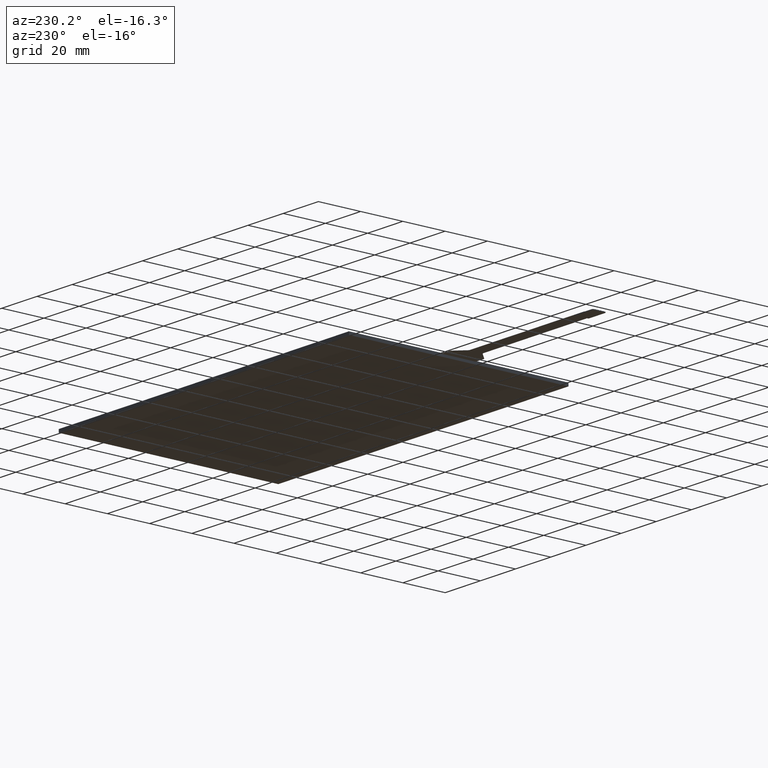
[diagram: clean part render]
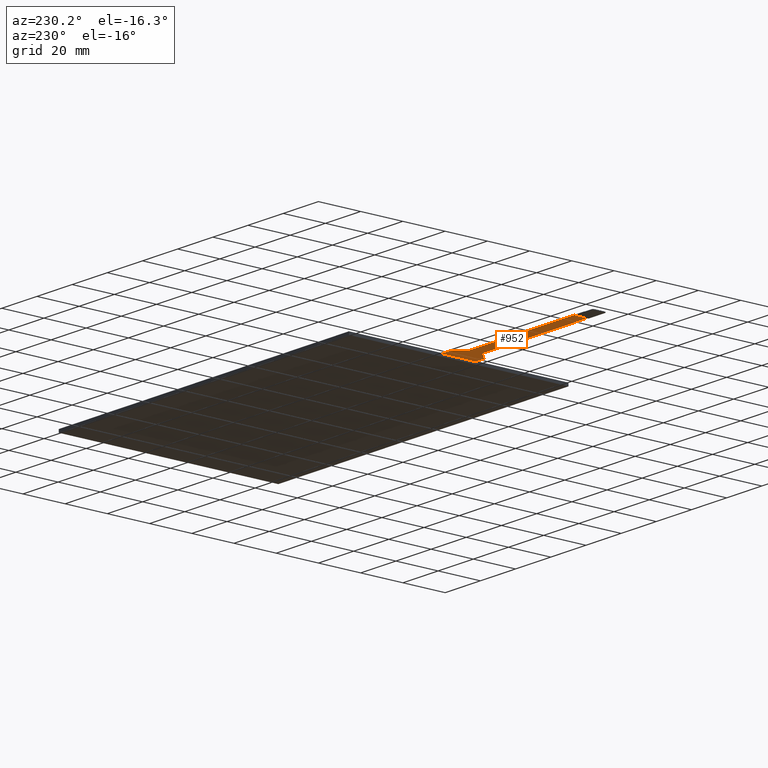
[diagram: same view with one face highlighted and labeled with its STEP entity id]
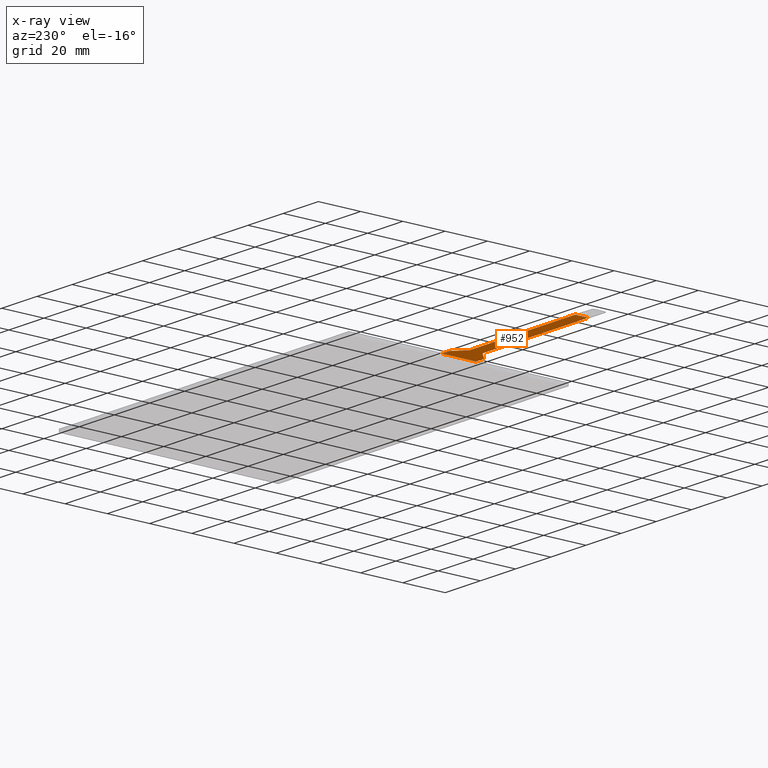
[diagram: x-ray of the same camera — body ghosted, the highlighted face saturated]
A machine part, auxiliary view. The second image highlights one B-rep face of the part: STEP entity #952.
The next image is the same camera in x-ray: the body ghosted, the highlighted face saturated — about 0% of this face is hidden behind the body in this view.
In plain terms, the highlighted planar face has unit normal (0, 0, -1).
Its self-contained STEP definition (entity closure, byte-faithful):
#22=PLANE('',#1031);
#71=FACE_OUTER_BOUND('',#122,.T.);
#122=EDGE_LOOP('',(#706,#707,#708,#709,#710,#711,#712,#713,#714,#715,#716,
#717));
#178=LINE('',#1366,#304);
#188=LINE('',#1389,#314);
#191=LINE('',#1398,#317);
#193=LINE('',#1402,#319);
#194=LINE('',#1403,#320);
#195=LINE('',#1404,#321);
#196=LINE('',#1406,#322);
#197=LINE('',#1407,#323);
#304=VECTOR('',#1106,10.);
#314=VECTOR('',#1126,10.);
#317=VECTOR('',#1135,10.);
#319=VECTOR('',#1139,10.);
#320=VECTOR('',#1140,10.);
#321=VECTOR('',#1141,10.);
#322=VECTOR('',#1142,10.);
#323=VECTOR('',#1143,10.);
#420=CIRCLE('',#1016,1.);
#425=CIRCLE('',#1024,1.);
#426=CIRCLE('',#1026,1.);
#427=CIRCLE('',#1029,1.);
#432=VERTEX_POINT('',#1334);
#433=VERTEX_POINT('',#1335);
#446=VERTEX_POINT('',#1365);
#447=VERTEX_POINT('',#1369);
#448=VERTEX_POINT('',#1373);
#449=VERTEX_POINT('',#1375);
#454=VERTEX_POINT('',#1387);
#455=VERTEX_POINT('',#1391);
#456=VERTEX_POINT('',#1392);
#457=VERTEX_POINT('',#1397);
#458=VERTEX_POINT('',#1401);
#459=VERTEX_POINT('',#1405);
#524=EDGE_CURVE('',#432,#433,#420,.T.);
#539=EDGE_CURVE('',#446,#433,#178,.T.);
#541=EDGE_CURVE('',#446,#447,#425,.T.);
#544=EDGE_CURVE('',#448,#449,#426,.T.);
#551=EDGE_CURVE('',#448,#454,#188,.T.);
#552=EDGE_CURVE('',#455,#456,#427,.T.);
#555=EDGE_CURVE('',#457,#456,#191,.T.);
#557=EDGE_CURVE('',#432,#458,#193,.T.);
#558=EDGE_CURVE('',#457,#458,#194,.T.);
#559=EDGE_CURVE('',#455,#449,#195,.T.);
#560=EDGE_CURVE('',#454,#459,#196,.T.);
#561=EDGE_CURVE('',#459,#447,#197,.T.);
#706=ORIENTED_EDGE('',*,*,#524,.F.);
#707=ORIENTED_EDGE('',*,*,#557,.T.);
#708=ORIENTED_EDGE('',*,*,#558,.F.);
#709=ORIENTED_EDGE('',*,*,#555,.T.);
#710=ORIENTED_EDGE('',*,*,#552,.F.);
#711=ORIENTED_EDGE('',*,*,#559,.T.);
#712=ORIENTED_EDGE('',*,*,#544,.F.);
#713=ORIENTED_EDGE('',*,*,#551,.T.);
#714=ORIENTED_EDGE('',*,*,#560,.T.);
#715=ORIENTED_EDGE('',*,*,#561,.T.);
#716=ORIENTED_EDGE('',*,*,#541,.F.);
#717=ORIENTED_EDGE('',*,*,#539,.T.);
#952=ADVANCED_FACE('',(#71),#22,.T.);
#1016=AXIS2_PLACEMENT_3D('',#1336,#1082,#1083);
#1024=AXIS2_PLACEMENT_3D('',#1370,#1110,#1111);
#1026=AXIS2_PLACEMENT_3D('',#1376,#1116,#1117);
#1029=AXIS2_PLACEMENT_3D('',#1393,#1129,#1130);
#1031=AXIS2_PLACEMENT_3D('',#1400,#1137,#1138);
#1082=DIRECTION('center_axis',(0.,0.,1.));
#1083=DIRECTION('ref_axis',(-0.382683432365091,0.923879532511286,0.));
#1106=DIRECTION('',(0.707106781186547,0.707106781186548,0.));
#1110=DIRECTION('center_axis',(0.,0.,-1.));
#1111=DIRECTION('ref_axis',(0.382683432365089,-0.923879532511287,0.));
#1116=DIRECTION('center_axis',(0.,0.,-1.));
#1117=DIRECTION('ref_axis',(0.382683432365089,0.923879532511287,0.));
#1126=DIRECTION('',(-1.,-4.8978104117518E-16,0.));
#1129=DIRECTION('center_axis',(0.,0.,1.));
#1130=DIRECTION('ref_axis',(-0.382683432365089,-0.923879532511287,0.));
#1135=DIRECTION('',(-1.,-4.65502316404678E-16,0.));
#1137=DIRECTION('center_axis',(0.,0.,-1.));
#1138=DIRECTION('ref_axis',(-1.,0.,0.));
#1139=DIRECTION('',(1.,2.32751158202339E-16,0.));
#1140=DIRECTION('',(-3.41607084500048E-16,1.,0.));
#1141=DIRECTION('',(-0.707106781186546,0.707106781186549,0.));
#1142=DIRECTION('',(0.,1.,0.));
#1143=DIRECTION('',(1.,1.18495413187543E-16,0.));
#1334=CARTESIAN_POINT('',(-88.1057864376269,8.08999999999999,-0.288));
#1335=CARTESIAN_POINT('',(-88.8128932188135,7.79710678118652,-0.288));
#1336=CARTESIAN_POINT('Origin',(-88.1057864376269,7.08999999999999,-0.288));
#1365=CARTESIAN_POINT('',(-93.1871067811866,3.42289321881343,-0.288));
#1366=CARTESIAN_POINT('',(-88.52,8.08999999999999,-0.288));
#1369=CARTESIAN_POINT('',(-93.8942135623731,3.12999999999998,-0.288));
#1370=CARTESIAN_POINT('Origin',(-93.8942135623731,4.12999999999998,-0.288));
#1373=CARTESIAN_POINT('',(-93.8942135623731,-3.11999999999999,-0.288));
#1375=CARTESIAN_POINT('',(-93.1871067811866,-3.41289321881345,-0.288));
#1376=CARTESIAN_POINT('Origin',(-93.8942135623731,-4.11999999999999,-0.288));
#1387=CARTESIAN_POINT('',(-153.75,-3.12000000000003,-0.288));
#1389=CARTESIAN_POINT('',(-163.75,-3.12000000000003,-0.288));
#1391=CARTESIAN_POINT('',(-88.8128932188135,-7.78710678118656,-0.288));
#1392=CARTESIAN_POINT('',(-88.1057864376269,-8.08000000000002,-0.288));
#1393=CARTESIAN_POINT('Origin',(-88.1057864376269,-7.08000000000002,-0.288));
#1397=CARTESIAN_POINT('',(-83.75,-8.08000000000001,-0.288));
#1398=CARTESIAN_POINT('',(-88.52,-8.08000000000002,-0.288));
#1400=CARTESIAN_POINT('Origin',(-123.75,0.00499999999998724,-0.288));
#1401=CARTESIAN_POINT('',(-83.75,8.08999999999999,-0.288));
#1402=CARTESIAN_POINT('',(-83.75,8.08999999999999,-0.288));
#1403=CARTESIAN_POINT('',(-83.75,-25.9975,-0.288));
#1404=CARTESIAN_POINT('',(-93.48,-3.11999999999999,-0.288));
#1405=CARTESIAN_POINT('',(-153.75,3.12999999999997,-0.288));
#1406=CARTESIAN_POINT('',(-153.75,1.56749999999998,-0.288));
#1407=CARTESIAN_POINT('',(-93.48,3.12999999999998,-0.288));